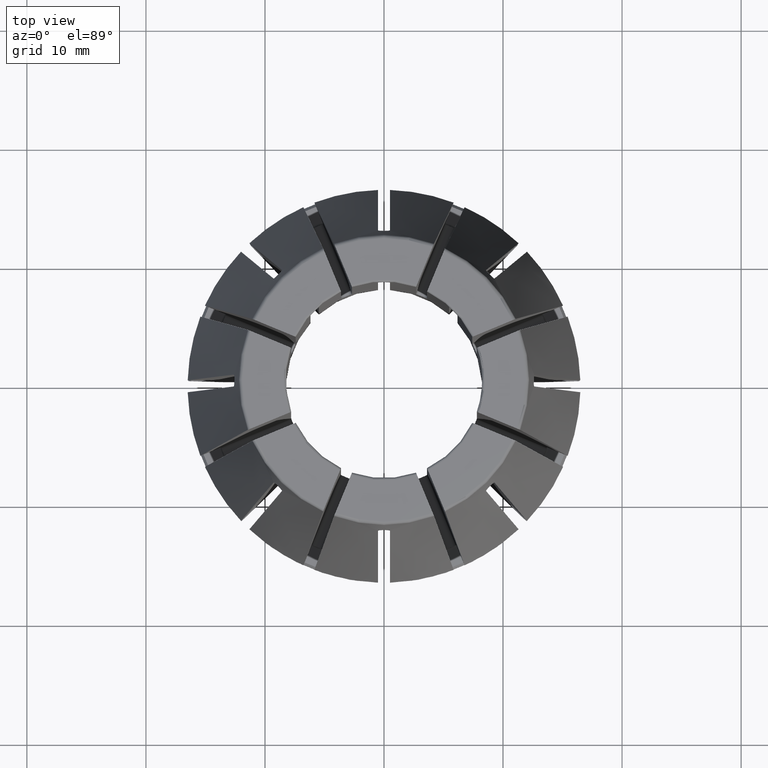
[diagram: clean part render]
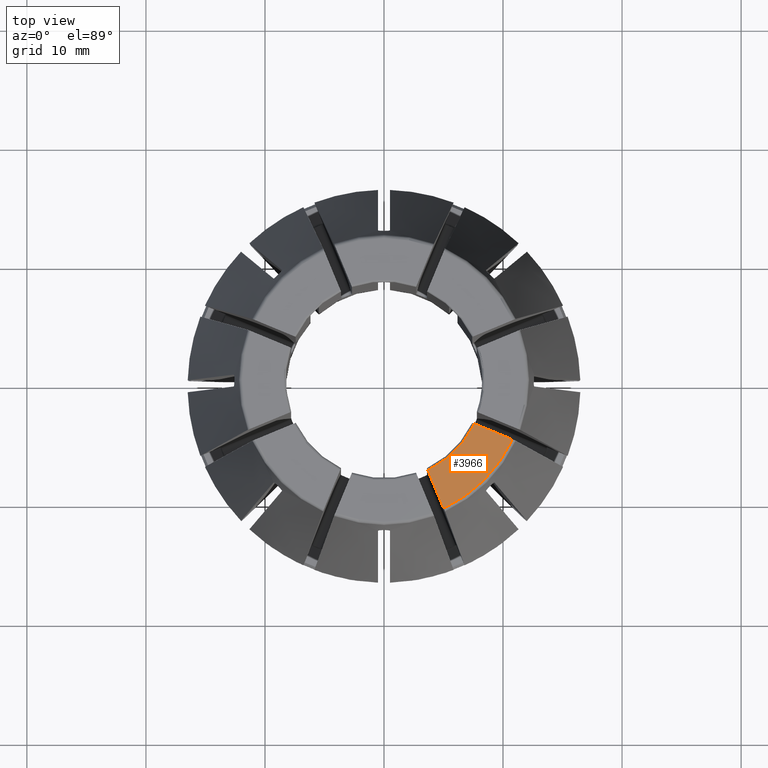
[diagram: same view with one face highlighted and labeled with its STEP entity id]
A machine part, top view. The second image highlights one B-rep face of the part: STEP entity #3966.
In plain terms, the highlighted planar face has unit normal (0, 0, -1).
Its self-contained STEP definition (entity closure, byte-faithful):
#248=LINE('',#6793,#472);
#259=LINE('',#6842,#483);
#472=VECTOR('',#5149,1000.);
#483=VECTOR('',#5176,1000.);
#606=PLANE('',#4379);
#647=CIRCLE('',#4049,11.8965021863512);
#648=CIRCLE('',#4051,8.45);
#1746=ORIENTED_EDGE('',*,*,#2127,.T.);
#1747=ORIENTED_EDGE('',*,*,#2538,.T.);
#1748=ORIENTED_EDGE('',*,*,#2123,.T.);
#1749=ORIENTED_EDGE('',*,*,#2519,.F.);
#2123=EDGE_CURVE('',#2737,#2738,#647,.T.);
#2127=EDGE_CURVE('',#2741,#2739,#648,.T.);
#2519=EDGE_CURVE('',#2741,#2738,#248,.T.);
#2538=EDGE_CURVE('',#2739,#2737,#259,.T.);
#2737=VERTEX_POINT('',#5640);
#2738=VERTEX_POINT('',#5641);
#2739=VERTEX_POINT('',#5655);
#2741=VERTEX_POINT('',#5658);
#3490=EDGE_LOOP('',(#1746,#1747,#1748,#1749));
#3700=FACE_BOUND('',#3490,.T.);
#3966=ADVANCED_FACE('',(#3700),#606,.F.);
#4049=AXIS2_PLACEMENT_3D('',#5639,#4508,#4509);
#4051=AXIS2_PLACEMENT_3D('',#5657,#4512,#4513);
#4379=AXIS2_PLACEMENT_3D('',#7309,#5361,#5362);
#4508=DIRECTION('',(0.,0.,1.));
#4509=DIRECTION('',(1.,0.,0.));
#4512=DIRECTION('',(0.,0.,-1.));
#4513=DIRECTION('',(-1.,0.,0.));
#5149=DIRECTION('',(0.923879532511287,-0.38268343236509,0.));
#5176=DIRECTION('',(0.38268343236509,-0.923879532511287,0.));
#5361=DIRECTION('',(0.,0.,-1.));
#5362=DIRECTION('',(-1.,0.,0.));
#5639=CARTESIAN_POINT('',(0.,0.,40.2));
#5640=CARTESIAN_POINT('',(5.01051131293644,-10.7898814012386,40.2));
#5641=CARTESIAN_POINT('',(10.7898814012386,-5.01051131293644,40.2));
#5655=CARTESIAN_POINT('',(3.68994880834518,-7.60176149269299,40.2));
#5657=CARTESIAN_POINT('',(0.,0.,40.2));
#5658=CARTESIAN_POINT('',(7.60176149269299,-3.68994880834518,40.2));
#6793=CARTESIAN_POINT('',(-4.3973904003673,1.28026264273519,40.2));
#6842=CARTESIAN_POINT('',(-3.74410891792911,10.3456414935429,40.2));
#7309=CARTESIAN_POINT('',(0.,11.8965021863512,40.2));